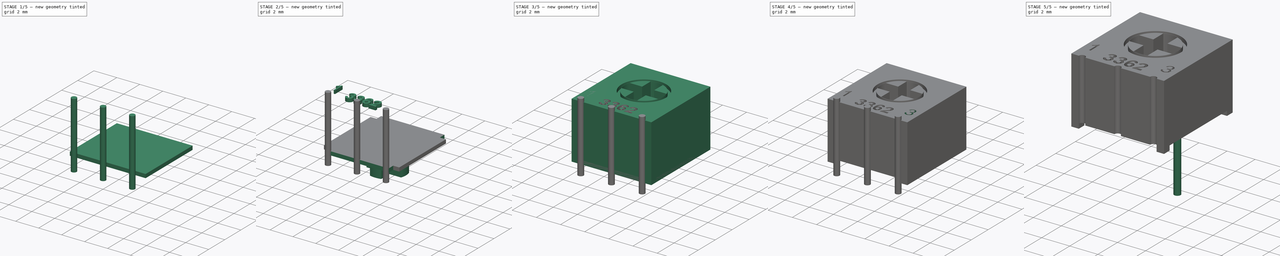
[diagram: build sequence overview — one tinted view per stage of 5, left to right]
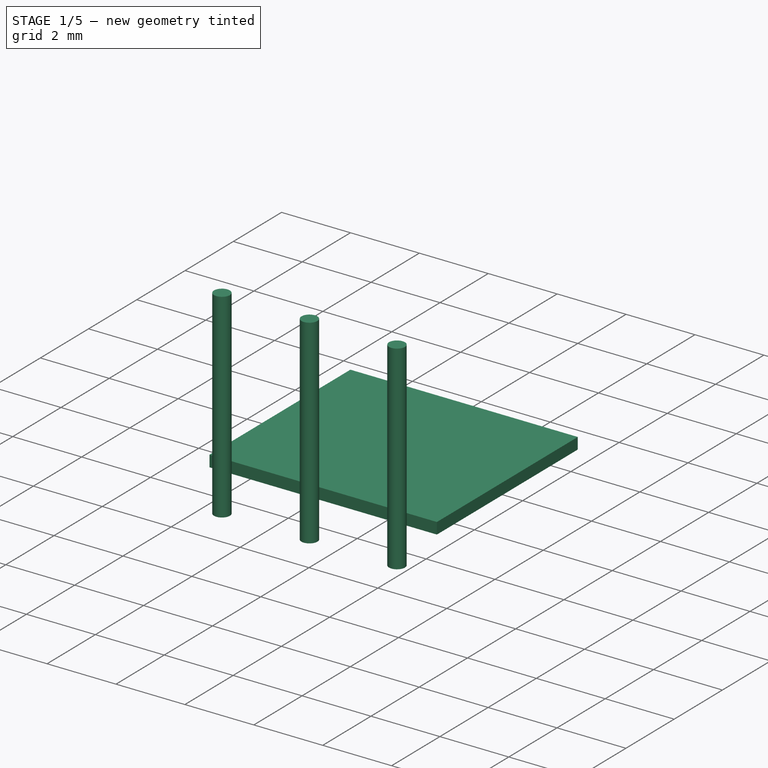
[diagram: stage 1 of 5 — iso view after this stage's code; geometry added in this stage tinted green]
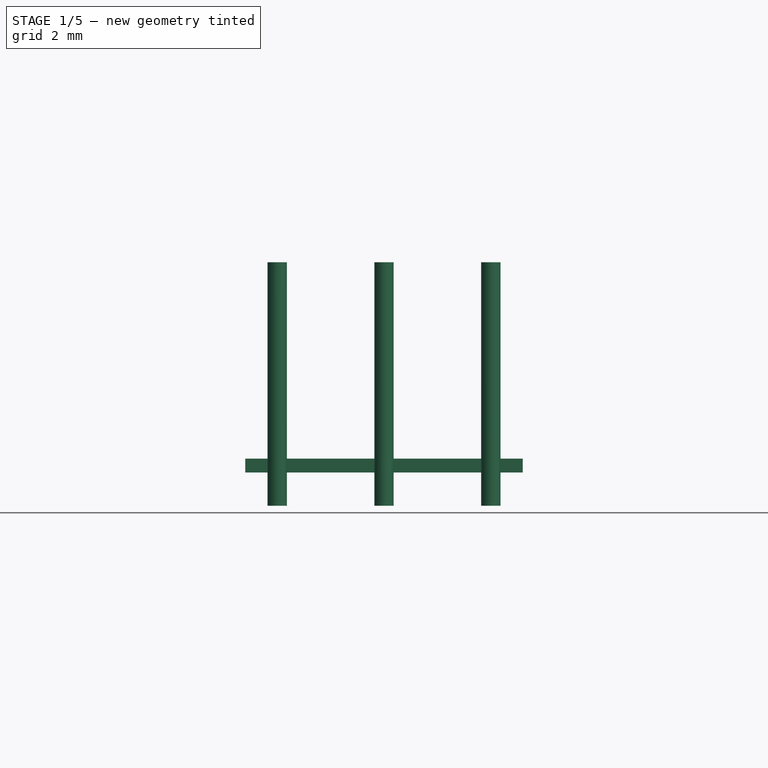
[diagram: stage 1 of 5 — front view after this stage's code; geometry added in this stage tinted green]
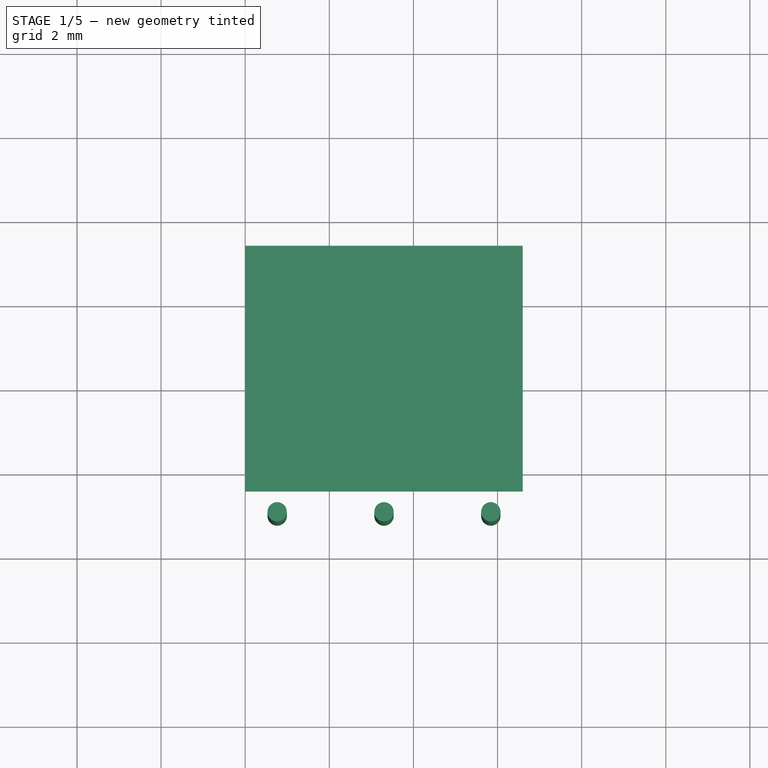
[diagram: stage 1 of 5 — top view after this stage's code; geometry added in this stage tinted green]
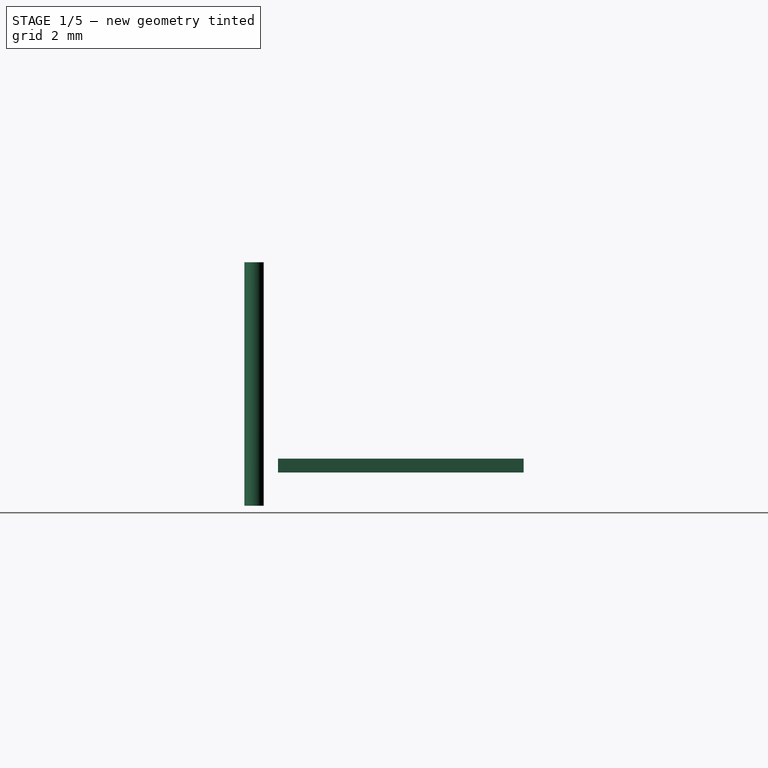
[diagram: stage 1 of 5 — right view after this stage's code; geometry added in this stage tinted green]
FCSTD DOCUMENT  (FreeCAD 0.18R4 (GitTag))
Label: 3362
License: All rights reserved
LicenseURL: http://en.wikipedia.org/wiki/All_rights_reserved
objects: PartDesign::Body×9, Part::Cut×8, Sketcher::SketchObject×5, PartDesign::Pad×5, PartDesign::FeatureBase×4, Part::Part2DObjectPython×3, Part::FeaturePython×3, Part::Box×2, Part::MultiFuse×1
note: 45 computed .brp shape members not serialized (recipe doc carries the construction recipe); baked Part::Feature solids carry a one-line shape summary decoded from their .brp

FEATURE [Part::Box] Box001  label="Куб001"
  AttacherType = Attacher::AttachEngine3D
  Height = 0.33
  Length = 6.6
  Placement = pos=(0,-6.41,0) rot=(0,0,1;0rad)
  Width = 5.84
FEATURE [Sketcher::SketchObject] Sketch004
  MapMode = 5
  Support = -> [XY_Plane006]
  sketch-geometry (4):
    g0: Circle CenterX=3.3 CenterY=-0.91 CenterZ=0 NormalX=0 NormalY=0 NormalZ=1 AngleXU=0 Radius=0.23
    g1: LineSegment [constr] StartX=3.3 StartY=-0.91 StartZ=0 EndX=3.3 EndY=-3.45 EndZ=0
    g2: LineSegment [constr] StartX=3.3 StartY=-3.45 StartZ=0 EndX=5.84 EndY=-3.45 EndZ=0
    g3: LineSegment [constr] StartX=0.76 StartY=-3.45 StartZ=0 EndX=3.3 EndY=-3.45 EndZ=0
  constraints (12):
    c: Radius(g0) = 0.23
    c: Distance(g0,g-1) = 0.91
    c: Distance(g0,g-2) = 3.3
    c: Vertical(g1)
    c: Coincident(g0,g1)
    c: Distance(g1) = 2.54
    c: Coincident(g1,g2)
    c: Coincident(g1,g3)
    c: Distance(g2) = 2.54
    c: Distance(g3) = 2.54
    c: Horizontal(g2)
    c: Horizontal(g3)
FEATURE [PartDesign::Pad] Pad005
  Length = 5.79
  Length2 = 100
  Profile = -> Sketch004
  Reversed = true
  Type = 0
FEATURE [PartDesign::Body] Body006  label="pin_004"
  Group = -> [Sketch004,Pad005]
  Origin = -> Origin006
  Placement = pos=(0,0.9,5) rot=(0,0,1;0rad)
  Tip = -> Pad005
FEATURE [PartDesign::FeatureBase] Clone002
  BaseFeature = -> Body006
  Placement = pos=(0,0.9,5) rot=(0,0,1;0rad)
FEATURE [PartDesign::Body] Body007
  BaseFeature = -> Body006
  Group = -> [Clone002]
  Origin = -> Origin007
  Placement = pos=(2.54,0,0) rot=(0,0,1;0rad)
  Tip = -> Clone002
FEATURE [PartDesign::FeatureBase] Clone003
  BaseFeature = -> Body006
  Placement = pos=(0,0.9,5) rot=(0,0,1;0rad)
FEATURE [PartDesign::Body] Body008
  BaseFeature = -> Body006
  Group = -> [Clone003]
  Origin = -> Origin008
  Placement = pos=(-2.54,0,0) rot=(0,0,1;0rad)
  Tip = -> Clone003
FEATURE [Part::MultiFuse] Fusion
  Placement = pos=(0,-6.97,0) rot=(0,0,1;0rad)
  Shapes = -> [Body007,Body006,Body008]
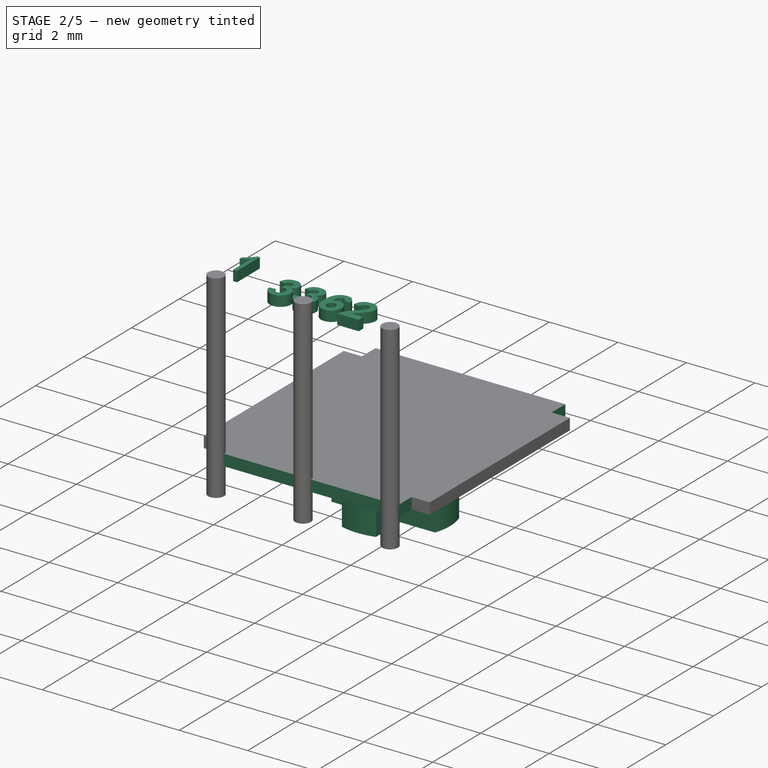
[diagram: stage 2 of 5 — iso view after this stage's code; geometry added in this stage tinted green]
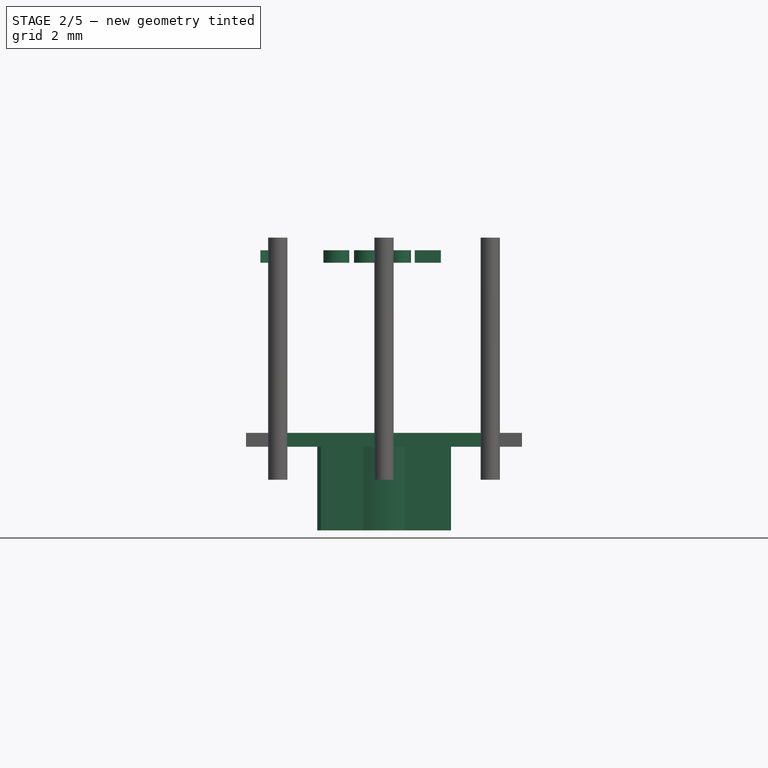
[diagram: stage 2 of 5 — front view after this stage's code; geometry added in this stage tinted green]
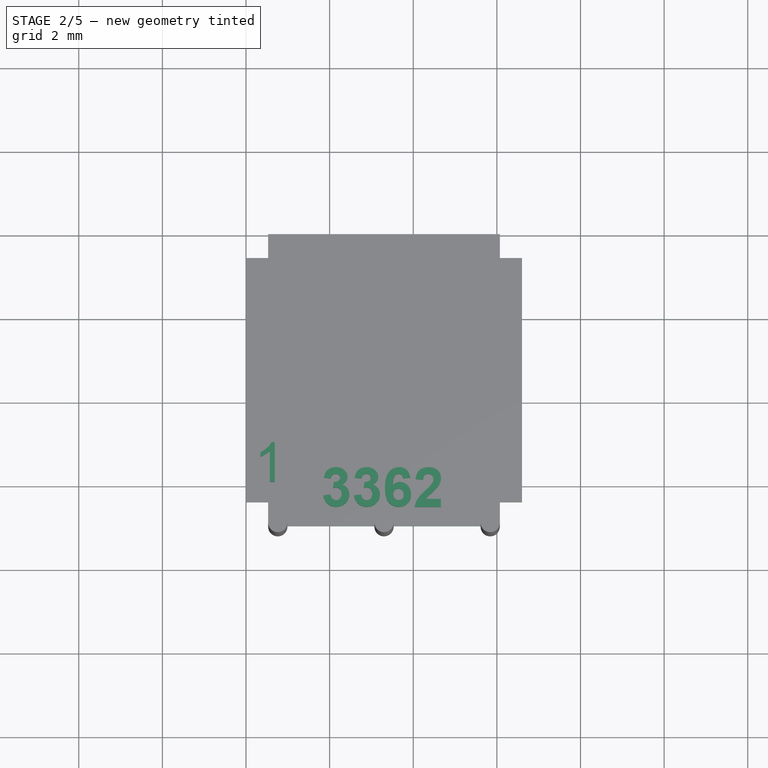
[diagram: stage 2 of 5 — top view after this stage's code; geometry added in this stage tinted green]
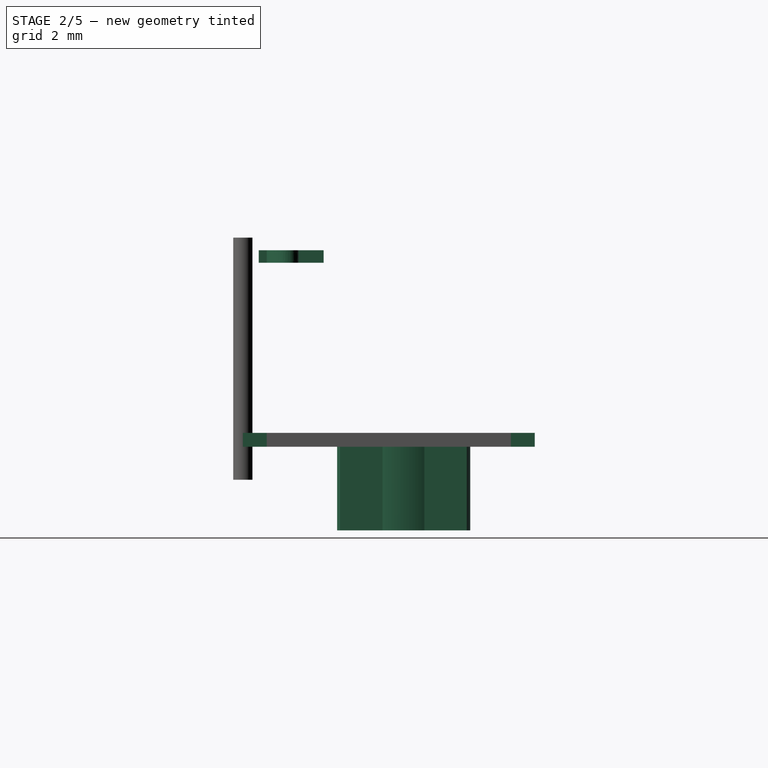
[diagram: stage 2 of 5 — right view after this stage's code; geometry added in this stage tinted green]
FEATURE [PartDesign::Body] Body005  label="circle"
  Group = -> [Sketch003,Pad003]
  Origin = -> Origin005
  Placement = pos=(0,0,4.7) rot=(0,0,1;0rad)
  Tip = -> Pad003
FEATURE [PartDesign::Pad] Pad004
  Length = 2
  Length2 = 100
  Profile = -> Sketch002
  Reversed = true
  Type = 0
FEATURE [Part::Part2DObjectPython] ShapeString  # Draft 2D object (typed FeaturePython)
  FontFile = <userpath>/Documents/arialbd.ttf
  Placement = pos=(2,-3.4,4.4) rot=(0,0,1;0rad)
  Size = 1
  String = 3362
  Tracking = 0
FEATURE [Part::FeaturePython] Wall  # Arch/BIM object (typed FeaturePython)
  Align = 2
  Base = -> ShapeString
  BlockHeight = 0
  BlockLength = 0
  CountBroken = 0
  CountEntire = 0
  Face = 0
  Height = 0.3
  HorizontalArea = 0
  IfcRole = 156
  Joint = 0
  Length = 0
  MakeBlocks = false
  MoveWithHost = false
  Normal = (0,0,0)
  OffsetFirst = 0
  OffsetSecond = 0
  PerimeterLength = 0
  Placement = pos=(-0.2,-3.2,0) rot=(0,0,1;0rad)
  VerticalArea = 0
  Width = 200
FEATURE [Part::Part2DObjectPython] ShapeString001  # Draft 2D object (typed FeaturePython)
  FontFile = <userpath>/Documents/arial.ttf
  Placement = pos=(0.2,-6,4.4) rot=(0,0,1;0rad)
  Size = 1
  String = 1
  Tracking = 0
FEATURE [Part::Part2DObjectPython] ShapeString002  # Draft 2D object (typed FeaturePython)
  FontFile = <userpath>/Documents/arial.ttf
  Placement = pos=(5.5,-6,4.4) rot=(0,0,1;0rad)
  Size = 1
  String = 3
  Tracking = 0
FEATURE [Part::FeaturePython] Wall001  # Arch/BIM object (typed FeaturePython)
  Align = 2
  Base = -> ShapeString001
  BlockHeight = 0
  BlockLength = 0
  CountBroken = 0
  CountEntire = 0
  Face = 0
  Height = 0.3
  HorizontalArea = 0.135902
  IfcRole = 156
  Joint = 0
  Length = 0
  MakeBlocks = false
  MoveWithHost = false
  Normal = (0,0,0)
  OffsetFirst = 0
  OffsetSecond = 0
  PerimeterLength = 2.63155
  VerticalArea = 0.789466
  Width = 200
FEATURE [Part::Box] Box  label="Куб"
  AttacherType = Attacher::AttachEngine3D
  Height = 0.33
  Length = 5.54
  Placement = pos=(0.53,-6.98,0) rot=(0,0,1;0rad)
  Width = 6.98
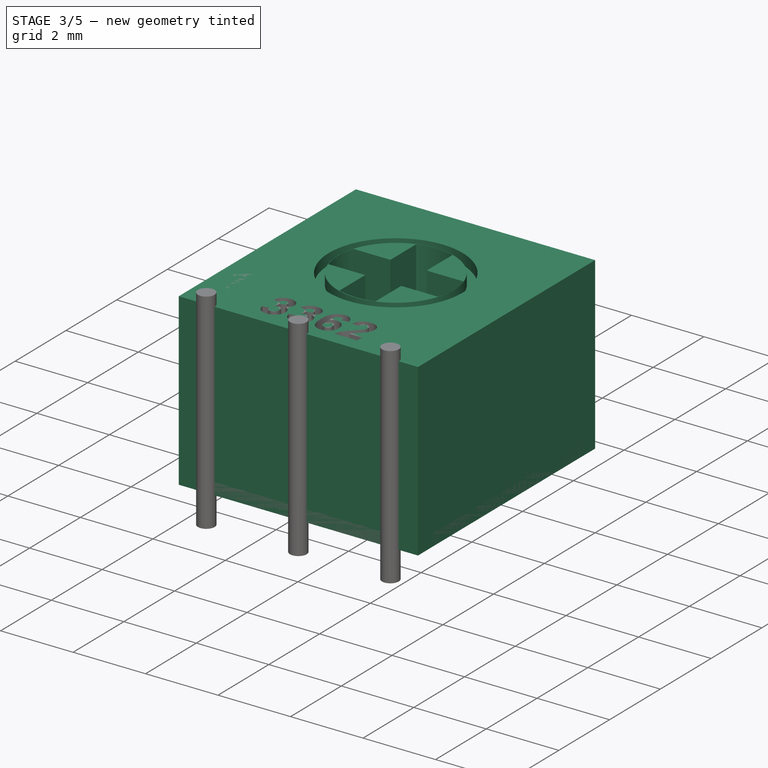
[diagram: stage 3 of 5 — iso view after this stage's code; geometry added in this stage tinted green]
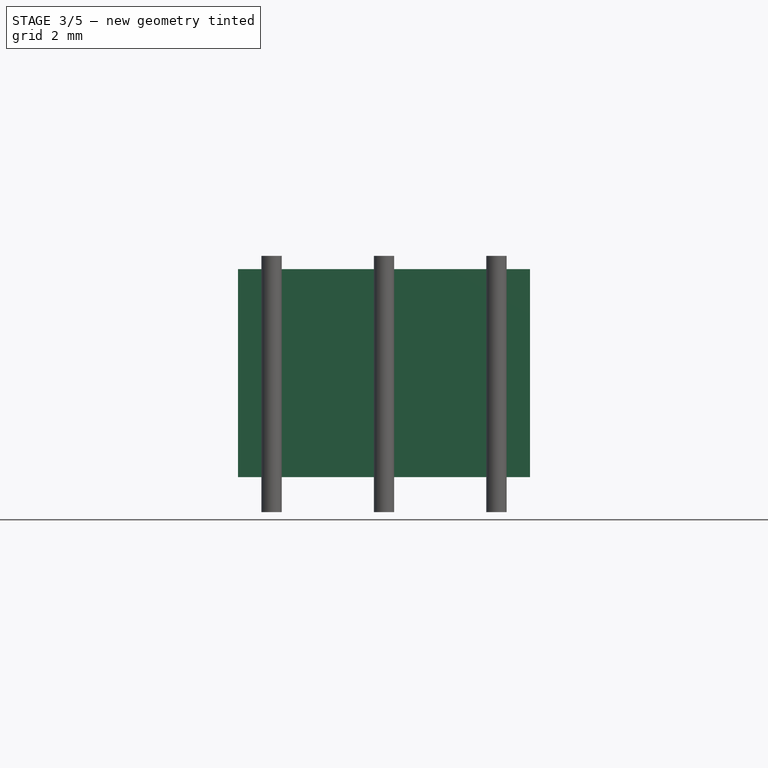
[diagram: stage 3 of 5 — front view after this stage's code; geometry added in this stage tinted green]
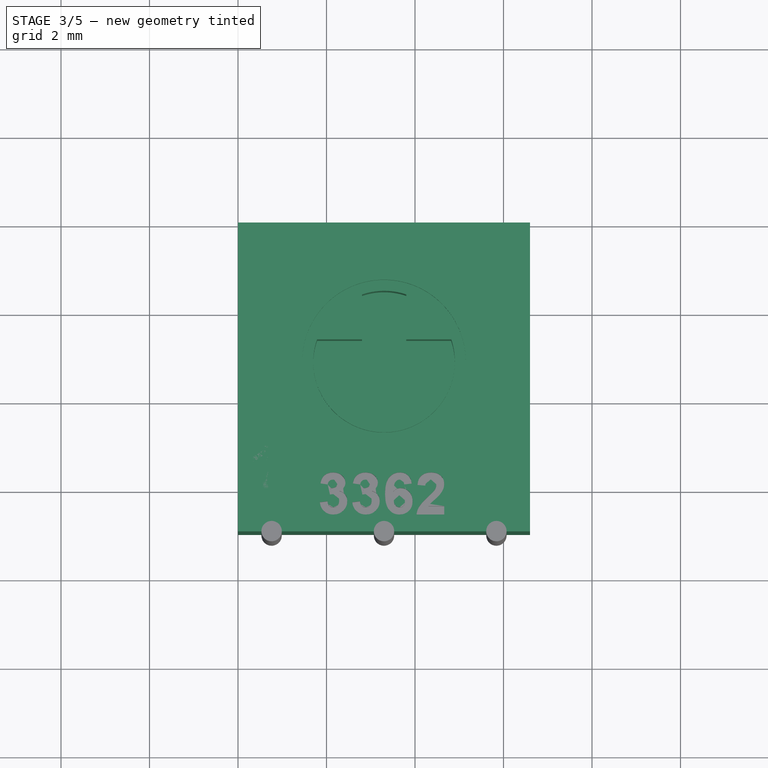
[diagram: stage 3 of 5 — top view after this stage's code; geometry added in this stage tinted green]
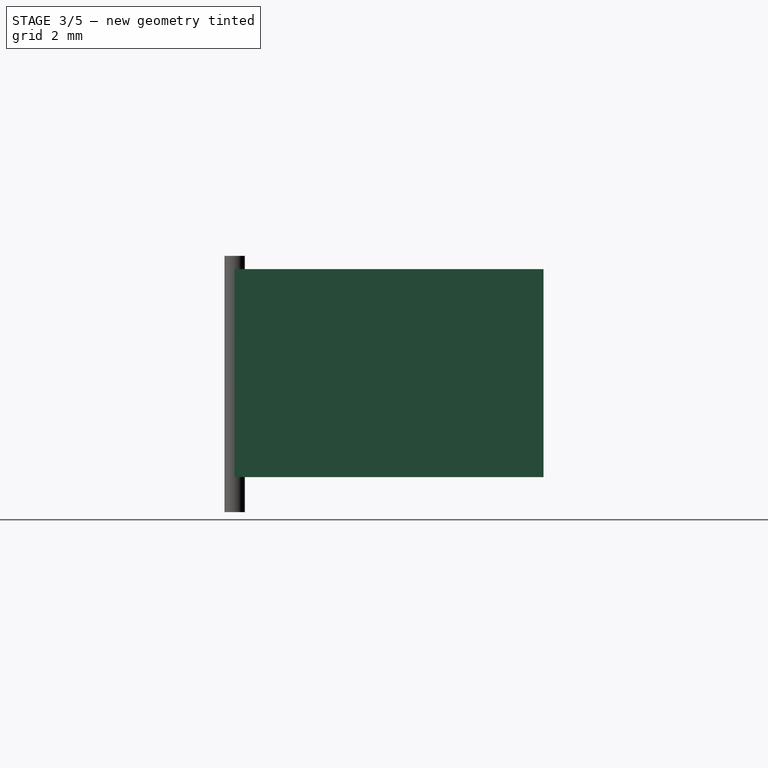
[diagram: stage 3 of 5 — right view after this stage's code; geometry added in this stage tinted green]
FEATURE [Sketcher::SketchObject] Sketch
  MapMode = 5
  Support = -> [XY_Plane]
  sketch-geometry (7):
    g0: LineSegment StartX=0 StartY=0 StartZ=0 EndX=6.6 EndY=0 EndZ=0
    g1: LineSegment StartX=6.6 StartY=0 StartZ=0 EndX=6.6 EndY=-6.98 EndZ=0
    g2: LineSegment StartX=6.6 StartY=-6.98 StartZ=0 EndX=0 EndY=-6.98 EndZ=0
    g3: LineSegment StartX=0 StartY=-6.98 StartZ=0 EndX=0 EndY=0 EndZ=0
    g4: GeomPoint X=-0.919239 Y=2.97257 Z=0
    g5: GeomPoint X=0 Y=0 Z=0
    g6: GeomPoint X=0 Y=0 Z=0
  constraints (13):
    c: Coincident(g0,g1)
    c: Coincident(g1,g2)
    c: Coincident(g2,g3)
    c: Coincident(g3,g0)
    c: Horizontal(g0)
    c: Horizontal(g2)
    c: Vertical(g1)
    c: Vertical(g3)
    c: DistanceX(g0,g0) = 6.6
    c: DistanceY(g1,g1) = 6.98
    c: Coincident(g0,g5)
    c: Coincident(g0,g6)
    c: Coincident(g-1,g0)
FEATURE [PartDesign::Pad] Pad
  Length = 4.7
  Length2 = 100
  Profile = -> Sketch
  Type = 0
FEATURE [PartDesign::Body] Body003  label="pin_3"
  BaseFeature = -> Pad001
  Group = -> [Clone001]
  Origin = -> Origin003
  Placement = pos=(2.54,-2.54,0.33) rot=(0,0,1;0rad)
  Tip = -> Clone001
FEATURE [Sketcher::SketchObject] Sketch002
  MapMode = 5
  Support = -> [XY_Plane004]
  sketch-geometry (23):
    g0: LineSegment [constr] StartX=0 StartY=0 StartZ=0 EndX=6.6 EndY=0 EndZ=0
    g1: LineSegment [constr] StartX=6.6 StartY=0 StartZ=0 EndX=6.6 EndY=-6.98 EndZ=0
    g2: LineSegment [constr] StartX=6.6 StartY=-6.98 StartZ=0 EndX=0 EndY=-6.98 EndZ=0
    g3: LineSegment [constr] StartX=0 StartY=-6.98 StartZ=0 EndX=0 EndY=0 EndZ=0
    g4: GeomPoint X=2.8026 Y=-2.6419 Z=0
    g5: GeomPoint X=3.8026 Y=-2.64071 Z=0
    g6: GeomPoint X=3.80001 Y=-3.64071 Z=0
    g7: GeomPoint X=2.80235 Y=-3.63437 Z=0
    g8: LineSegment StartX=1.78758 StartY=-2.6419 StartZ=0 EndX=2.8026 EndY=-2.6419 EndZ=0
    g9: LineSegment StartX=4.81762 StartY=-2.64071 StartZ=0 EndX=3.8026 EndY=-2.64071 EndZ=0
    g10: LineSegment StartX=4.81503 StartY=-3.64071 StartZ=0 EndX=3.80001 EndY=-3.64071 EndZ=0
    g11: LineSegment StartX=1.78733 StartY=-3.63437 StartZ=0 EndX=2.80235 EndY=-3.63437 EndZ=0
    g12: LineSegment StartX=2.8026 StartY=-1.62688 StartZ=0 EndX=2.8026 EndY=-2.6419 EndZ=0
    g13: LineSegment StartX=2.80235 StartY=-3.63437 StartZ=0 EndX=2.80235 EndY=-4.64939 EndZ=0
    g14: LineSegment StartX=3.80001 StartY=-4.65573 StartZ=0 EndX=3.80001 EndY=-3.64071 EndZ=0
    g15: LineSegment StartX=3.8026 StartY=-1.62569 StartZ=0 EndX=3.8026 EndY=-2.64071 EndZ=0
    g16: LineSegment [constr] StartX=2.8026 StartY=-2.6419 StartZ=0 EndX=3.80001 EndY=-3.64071 EndZ=0
    g17: LineSegment [constr] StartX=3.8026 StartY=-2.64071 StartZ=0 EndX=2.80235 EndY=-3.63437 EndZ=0
    g18: GeomPoint X=3.3 Y=-3.14 Z=0
    g19: ArcOfCircle CenterX=3.20152 CenterY=-3.1385 CenterZ=0 NormalX=0 NormalY=0 NormalZ=1 AngleXU=0 Radius=1.49861 StartAngle=2.80384 EndAngle=3.47884
    g20: ArcOfCircle CenterX=3.37979 CenterY=-3.13699 CenterZ=0 NormalX=0 NormalY=0 NormalZ=1 AngleXU=0 Radius=1.52106 StartAngle=5.94565 EndAngle=6.61554
    g21: ArcOfCircle CenterX=3.30433 CenterY=-3.08452 CenterZ=0 NormalX=0 NormalY=0 NormalZ=1 AngleXU=0 Radius=1.54157 StartAngle=1.24167 EndAngle=1.9023
    g22: ArcOfCircle CenterX=3.3119 CenterY=-2.96337 CenterZ=0 NormalX=0 NormalY=0 NormalZ=1 AngleXU=0 Radius=1.76134 StartAngle=4.41889 EndAngle=4.99319
  constraints (52):
    c: Coincident(g0,g1)
    c: Coincident(g1,g2)
    c: Coincident(g2,g3)
    c: Coincident(g3,g0)
    c: Horizontal(g0)
    c: Horizontal(g2)
    c: Vertical(g1)
    c: Vertical(g3)
    c: DistanceY(g1,g1) = 6.98
    c: DistanceX(g2,g2) = 6.6
    c: Coincident(g0,g-1)
    c: Horizontal(g8)
    c: Coincident(g4,g8)
    c: Horizontal(g9)
    c: Coincident(g5,g9)
    c: Horizontal(g10)
    c: Coincident(g6,g10)
    c: Distance(g9,g10) = 1
    c: Horizontal(g11)
    c: Coincident(g7,g11)
    c: Vertical(g12)
    c: Coincident(g4,g12)
    c: Coincident(g7,g13)
    c: Vertical(g13)
    c: Vertical(g14)
    c: Coincident(g6,g14)
    c: Vertical(g15)
    c: Coincident(g5,g15)
    c: Equal(g15,g12)
    c: Equal(g12,g8)
    c: Equal(g8,g11)
    c: Equal(g11,g9)
    c: Equal(g9,g10)
    c: Equal(g10,g13)
    c: Equal(g13,g14)
    c: Distance(g12,g15) = 1
    c: Coincident(g4,g16)
    c: Coincident(g5,g17)
    c: Coincident(g17,g7)
    c: Coincident(g16,g6)
    c: PointOnObject(g18,g17)
    c: PointOnObject(g18,g16)
    c: Distance(g18,g1) = 3.3
    c: Distance(g18,g2) = 3.84
    c: Coincident(g8,g19)
    c: Coincident(g11,g19)
    c: Coincident(g9,g20)
    c: Coincident(g10,g20)
    c: Coincident(g21,g12)
    c: Coincident(g21,g15)
    c: Coincident(g22,g13)
    c: Coincident(g22,g14)
FEATURE [Sketcher::SketchObject] Sketch003
  MapMode = 5
  Support = -> [XY_Plane005]
  sketch-geometry (6):
    g0: LineSegment [constr] StartX=0 StartY=0 StartZ=0 EndX=6.6 EndY=0 EndZ=0
    g1: LineSegment [constr] StartX=6.6 StartY=0 StartZ=0 EndX=6.6 EndY=-6.98 EndZ=0
    g2: LineSegment [constr] StartX=6.6 StartY=-6.98 StartZ=0 EndX=0 EndY=-6.98 EndZ=0
    g3: LineSegment [constr] StartX=0 StartY=-6.98 StartZ=0 EndX=0 EndY=0 EndZ=0
    g4: Circle CenterX=3.3 CenterY=-3.14 CenterZ=0 NormalX=0 NormalY=0 NormalZ=1 AngleXU=0 Radius=1.60292
    g5: Circle CenterX=3.3 CenterY=-3.14 CenterZ=0 NormalX=0 NormalY=0 NormalZ=1 AngleXU=0 Radius=1.84728
  constraints (12):
    c: Coincident(g0,g1)
    c: Coincident(g1,g2)
    c: Coincident(g2,g3)
    c: Coincident(g3,g0)
    c: Horizontal(g0)
    c: Horizontal(g2)
    c: Vertical(g1)
    c: Vertical(g3)
    c: DistanceY(g1,g1) = 6.98
    c: DistanceX(g2,g2) = 6.6
    c: Coincident(g0,g-1)
    c: Coincident(g4,g5)
FEATURE [PartDesign::Pad] Pad003
  Length = 0.3
  Length2 = 100
  Profile = -> Sketch003
  Reversed = true
  Type = 0
FEATURE [PartDesign::Body] Body004  label="croos"
  Group = -> [Sketch002,Pad004]
  Origin = -> Origin004
  Placement = pos=(0,0,4.7) rot=(0,0,1;0rad)
  Tip = -> Pad004
FEATURE [Part::Cut] Cut
  Base = -> Body
  Tool = -> Body004
FEATURE [Part::Cut] Cut001
  Base = -> Cut
  Tool = -> Body005
FEATURE [Part::Cut] Cut002
  Base = -> Cut001
  Tool = -> Wall
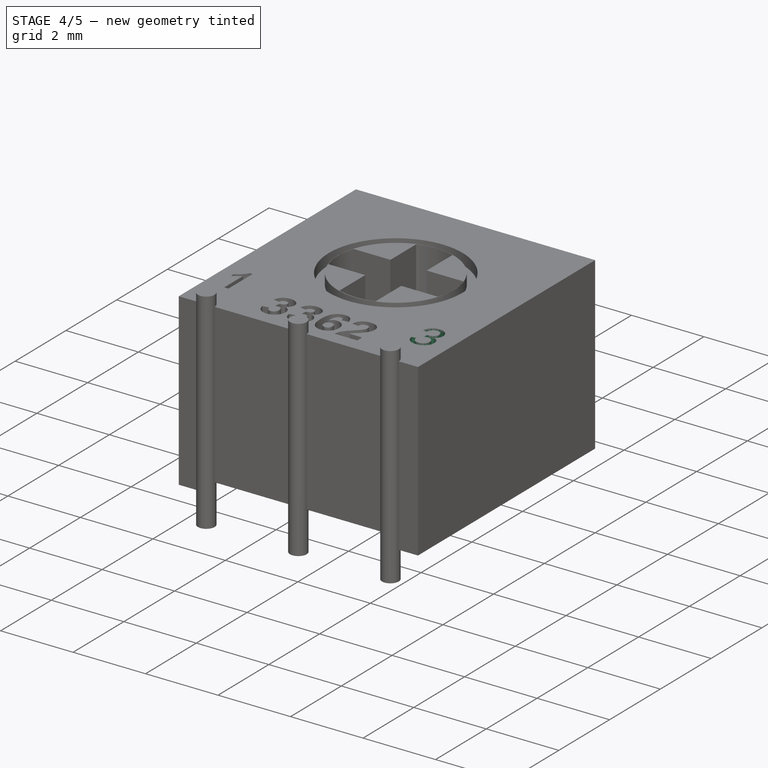
[diagram: stage 4 of 5 — iso view after this stage's code; geometry added in this stage tinted green]
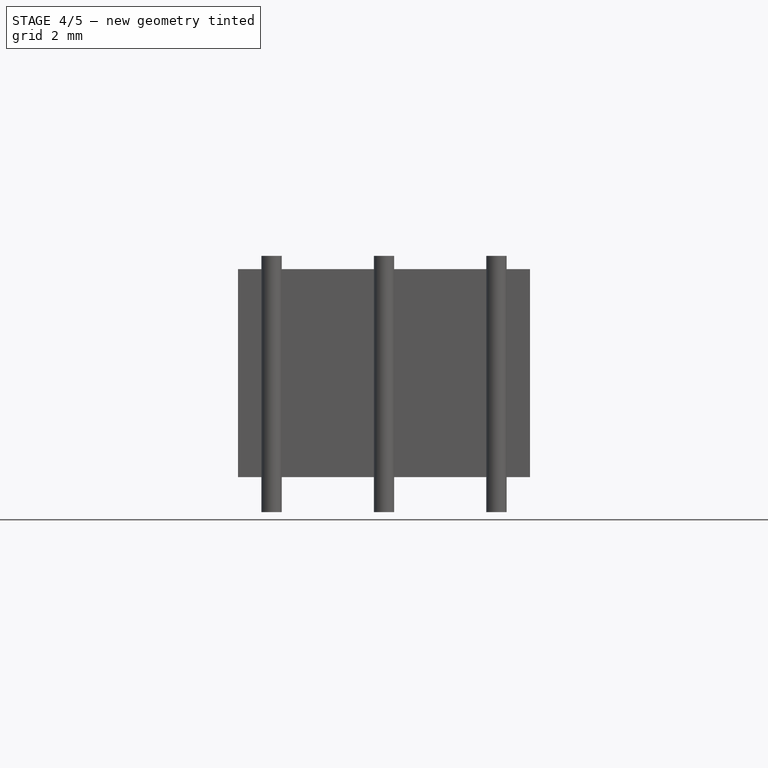
[diagram: stage 4 of 5 — front view after this stage's code; geometry added in this stage tinted green]
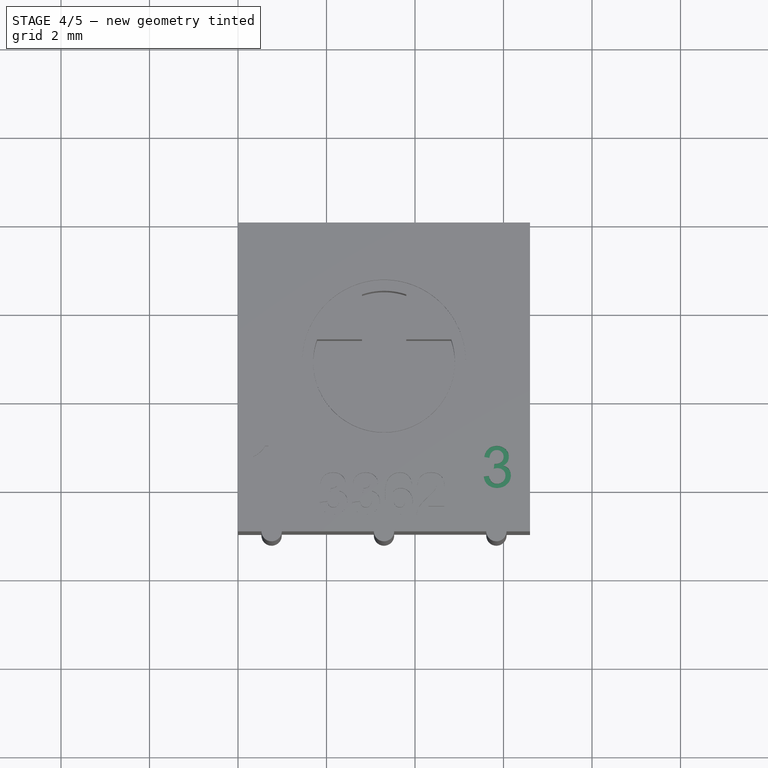
[diagram: stage 4 of 5 — top view after this stage's code; geometry added in this stage tinted green]
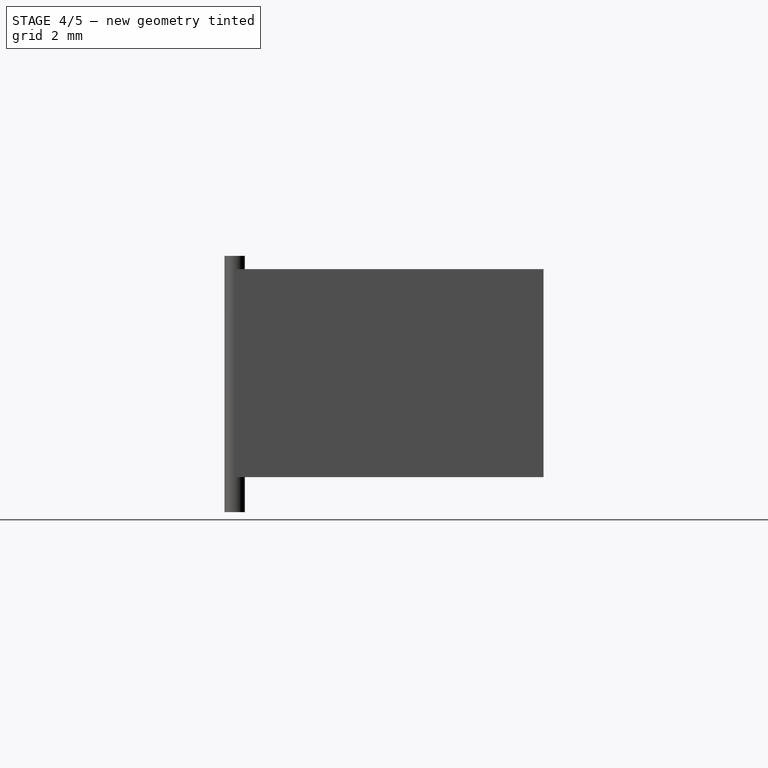
[diagram: stage 4 of 5 — right view after this stage's code; geometry added in this stage tinted green]
FEATURE [Part::FeaturePython] Wall002  # Arch/BIM object (typed FeaturePython)
  Align = 2
  Base = -> ShapeString002
  BlockHeight = 0
  BlockLength = 0
  CountBroken = 0
  CountEntire = 0
  Face = 0
  Height = 0.3
  HorizontalArea = 0
  IfcRole = 156
  Joint = 0
  Length = 0
  MakeBlocks = false
  MoveWithHost = false
  Normal = (0,0,0)
  OffsetFirst = 0
  OffsetSecond = 0
  PerimeterLength = 0
  VerticalArea = 0
  Width = 200
FEATURE [Part::Cut] Cut003
  Base = -> Cut002
  Tool = -> Wall001
FEATURE [Part::Cut] Cut004
  Base = -> Cut003
  Tool = -> Wall002
FEATURE [Part::Cut] Cut005
  Base = -> Cut004
  Tool = -> Box
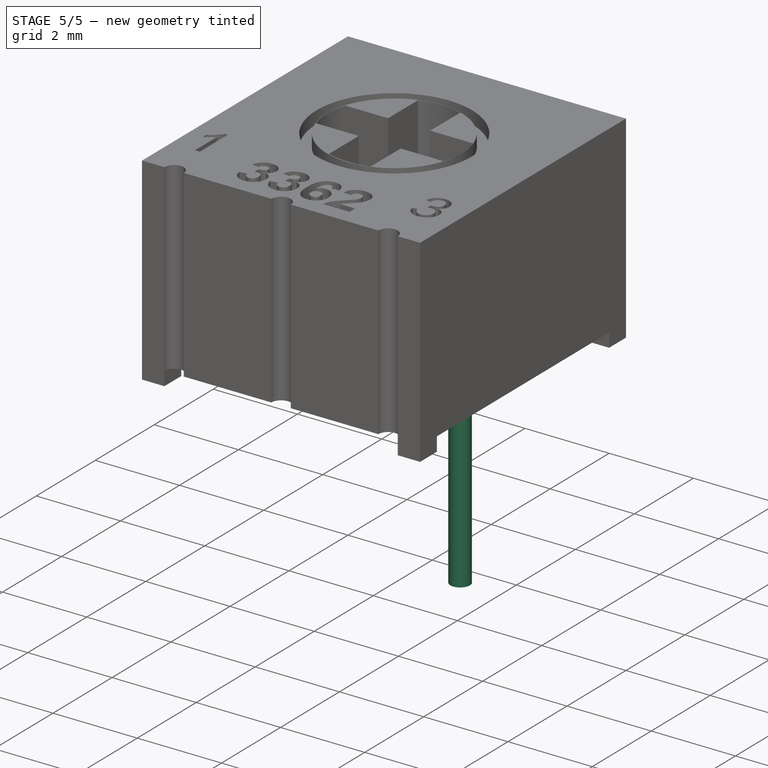
[diagram: stage 5 of 5 — iso view after this stage's code; geometry added in this stage tinted green]
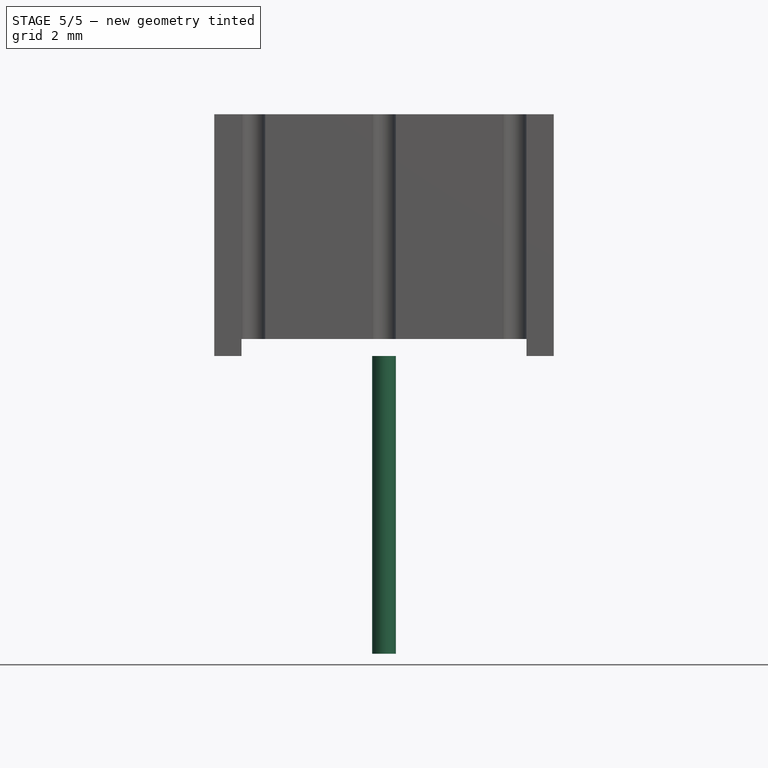
[diagram: stage 5 of 5 — front view after this stage's code; geometry added in this stage tinted green]
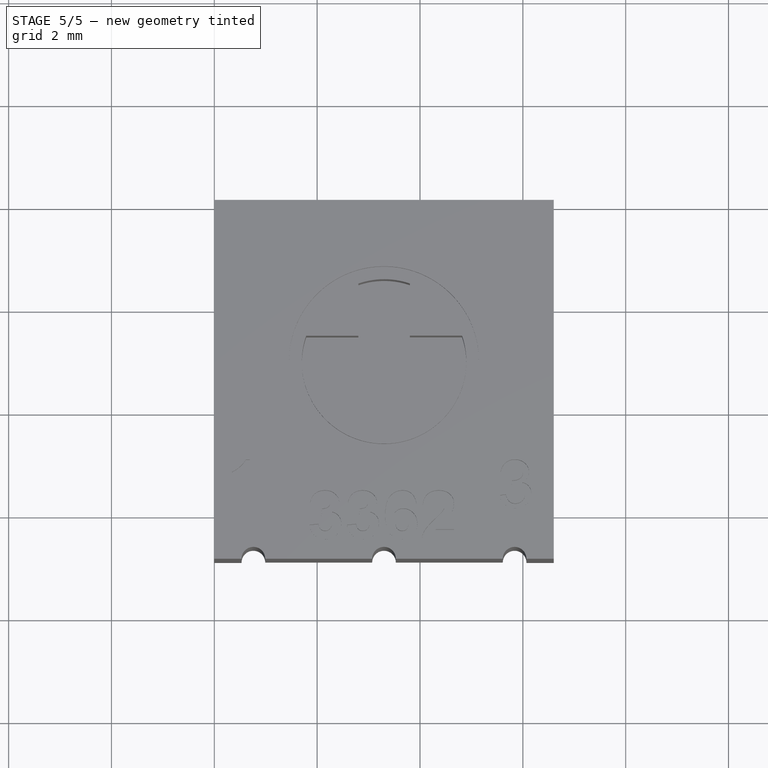
[diagram: stage 5 of 5 — top view after this stage's code; geometry added in this stage tinted green]
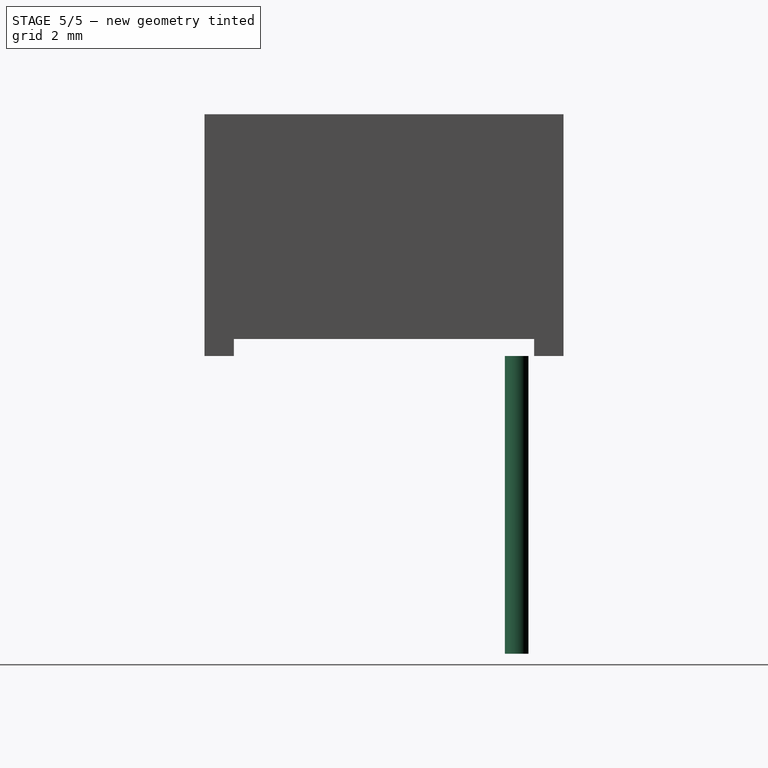
[diagram: stage 5 of 5 — right view after this stage's code; geometry added in this stage tinted green]
FEATURE [PartDesign::Body] Body  label="cube"
  Group = -> [Sketch,Pad]
  Origin = -> Origin
  Tip = -> Pad
FEATURE [Sketcher::SketchObject] Sketch001
  MapMode = 5
  Support = -> [XY_Plane001]
  sketch-geometry (4):
    g0: Circle CenterX=3.3 CenterY=-0.91 CenterZ=0 NormalX=0 NormalY=0 NormalZ=1 AngleXU=0 Radius=0.23
    g1: LineSegment [constr] StartX=3.3 StartY=-0.91 StartZ=0 EndX=3.3 EndY=-3.45 EndZ=0
    g2: LineSegment [constr] StartX=3.3 StartY=-3.45 StartZ=0 EndX=5.84 EndY=-3.45 EndZ=0
    g3: LineSegment [constr] StartX=0.76 StartY=-3.45 StartZ=0 EndX=3.3 EndY=-3.45 EndZ=0
  constraints (12):
    c: Radius(g0) = 0.23
    c: Distance(g0,g-1) = 0.91
    c: Distance(g0,g-2) = 3.3
    c: Vertical(g1)
    c: Coincident(g0,g1)
    c: Distance(g1) = 2.54
    c: Coincident(g1,g2)
    c: Coincident(g1,g3)
    c: Distance(g2) = 2.54
    c: Distance(g3) = 2.54
    c: Horizontal(g2)
    c: Horizontal(g3)
FEATURE [PartDesign::Pad] Pad001
  Length = 5.79
  Length2 = 100
  Profile = -> Sketch001
  Reversed = true
  Type = 0
FEATURE [PartDesign::Body] Body001  label="pin_1"
  Group = -> [Sketch001,Pad001]
  Origin = -> Origin001
  Placement = pos=(0,0,0.33) rot=(0,0,1;0rad)
  Tip = -> Pad001
FEATURE [PartDesign::FeatureBase] Clone
  BaseFeature = -> Body001
FEATURE [PartDesign::Body] Body002  label="pin_2"
  BaseFeature = -> Body001
  Group = -> [Clone]
  Origin = -> Origin002
  Placement = pos=(-2.54,-2.54,0.33) rot=(0,0,1;0rad)
  Tip = -> Clone
FEATURE [PartDesign::FeatureBase] Clone001
  BaseFeature = -> Pad001
FEATURE [Part::Cut] Cut006
  Base = -> Cut005
  Tool = -> Box001
FEATURE [Part::Cut] Cut007
  Base = -> Cut006
  Tool = -> Fusion
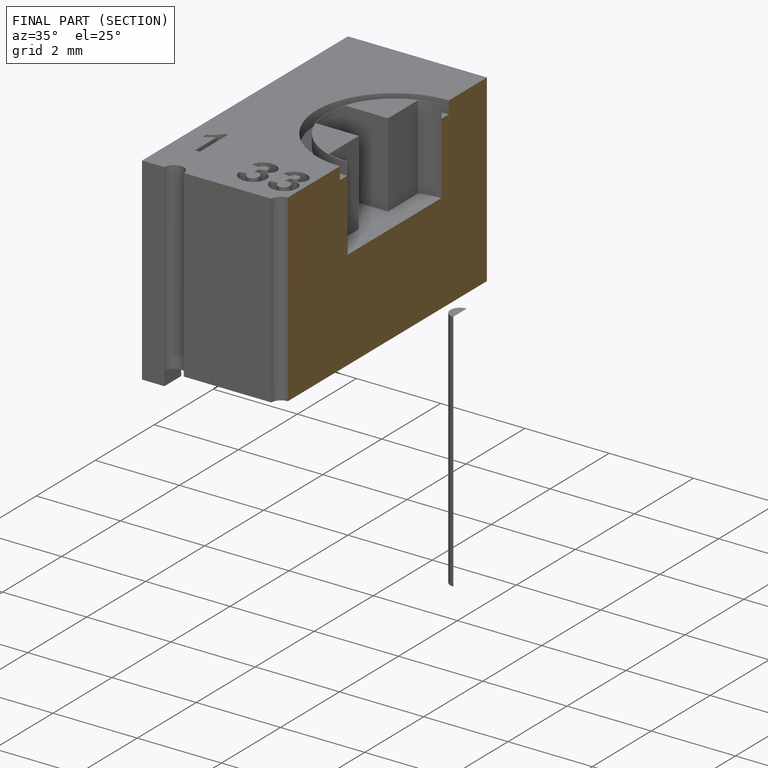
[diagram: finished part — half-section view (interior)]
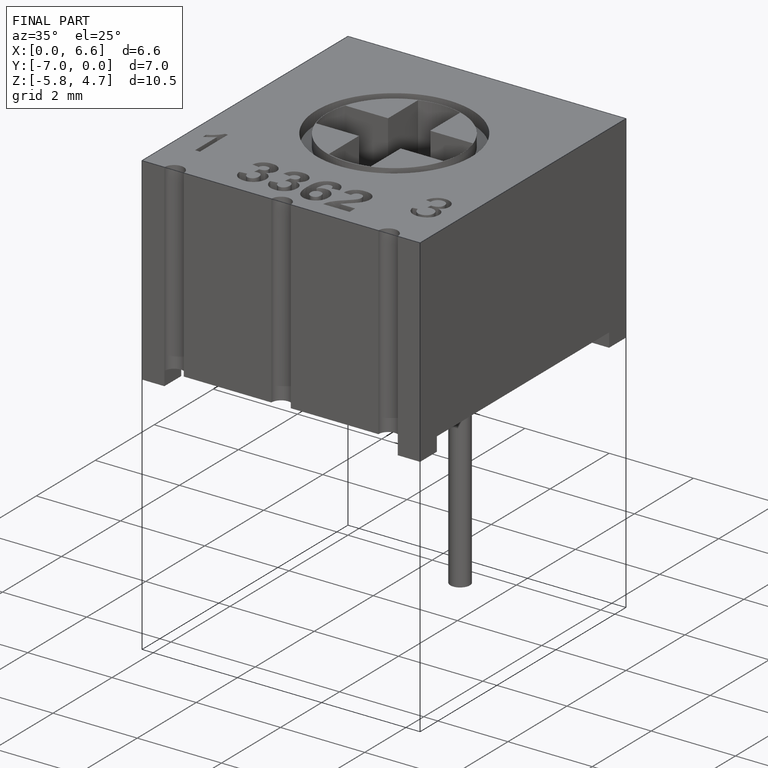
[diagram: finished part — iso view with bounding-box wireframe]
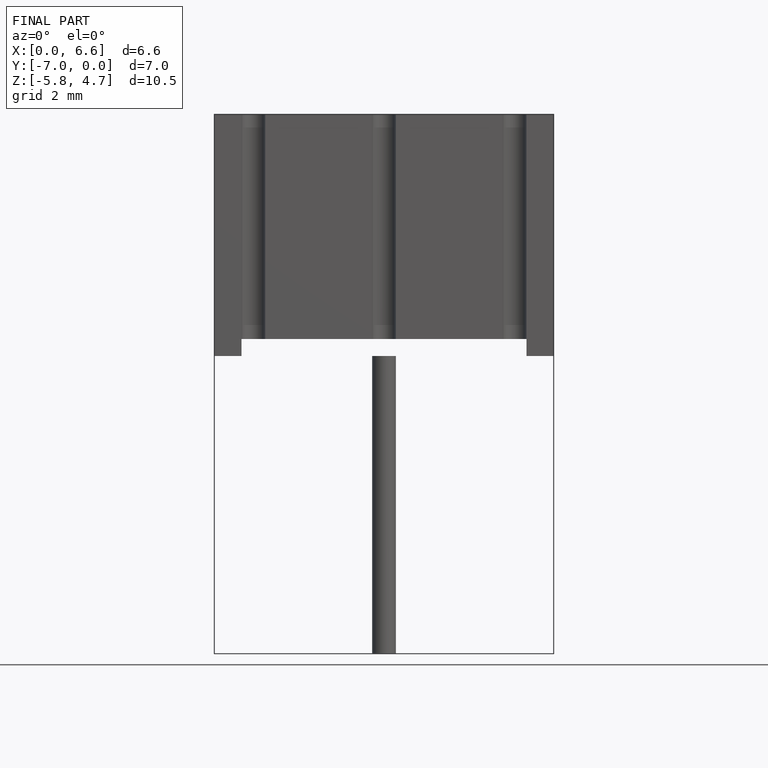
[diagram: finished part — front view with bounding-box wireframe]
